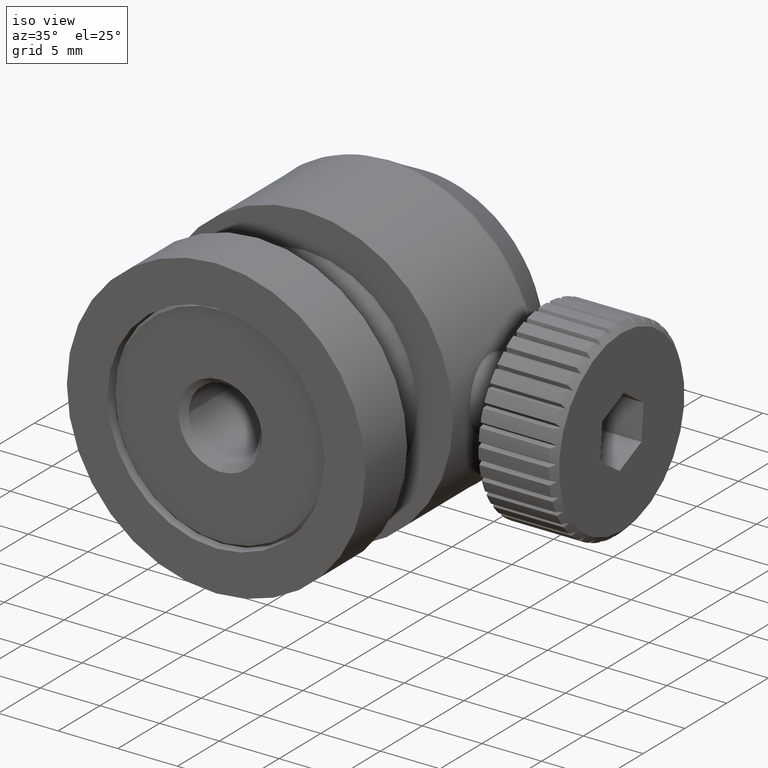
[diagram: clean part render]
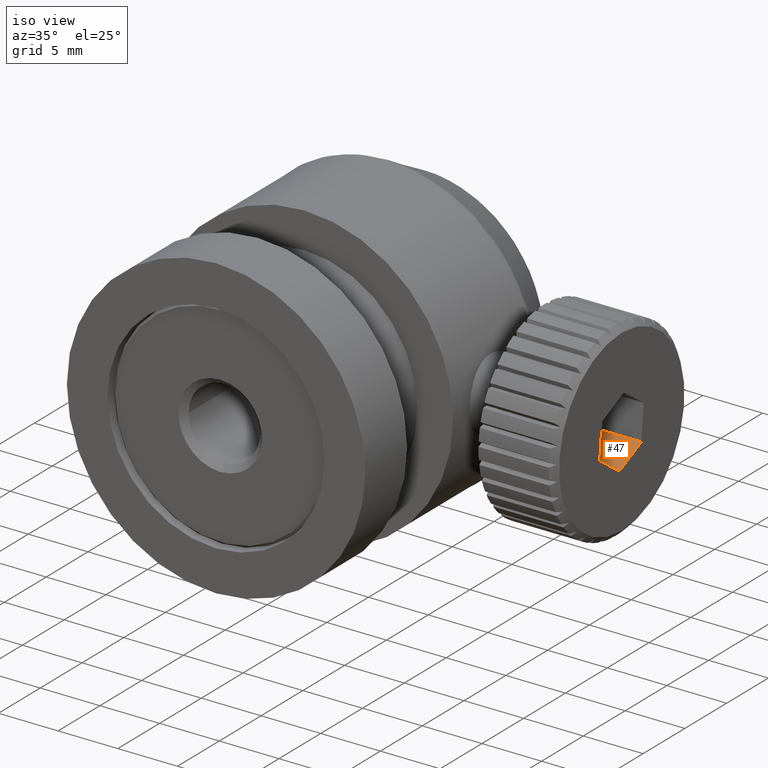
[diagram: same view with one face highlighted and labeled with its STEP entity id]
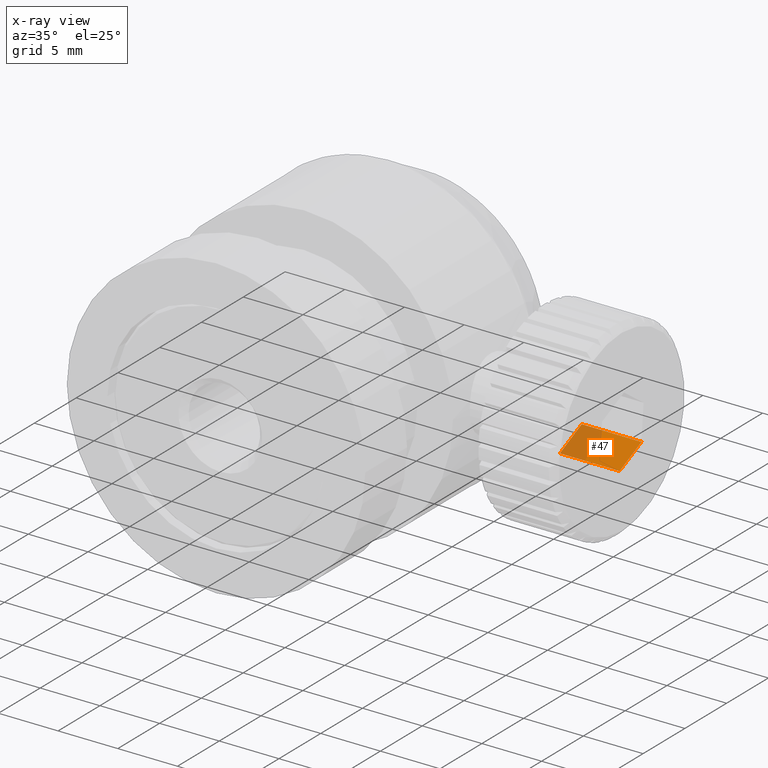
[diagram: x-ray of the same camera — body ghosted, the highlighted face saturated]
A machine part, iso view. The second image highlights one B-rep face of the part: STEP entity #47.
The next image is the same camera in x-ray: the body ghosted, the highlighted face saturated — about 41% of this face is hidden behind the body in this view.
In plain terms, the highlighted planar face has unit normal (-0, 0.4179, -0.9085).
Its self-contained STEP definition (entity closure, byte-faithful):
#47 = ADVANCED_FACE ( 'NONE', ( #1977 ), #3564, .F. ) ;
#395 = CARTESIAN_POINT ( 'NONE',  ( 20.13128916436953020, 3.419890326459812613, -4.006078107295148349 ) ) ;
#592 = DIRECTION ( 'NONE',  ( -1.000000000000000000, -7.015503901450659832E-18, 6.504312379654604108E-19 ) ) ;
#638 = ORIENTED_EDGE ( 'NONE', *, *, #5074, .T. ) ;
#699 = EDGE_LOOP ( 'NONE', ( #1614, #3452, #3606, #638 ) ) ;
#709 = CARTESIAN_POINT ( 'NONE',  ( 15.13128916436952665, 3.419890326459813057, -4.006078107295149238 ) ) ;
#836 = CARTESIAN_POINT ( 'NONE',  ( 15.13128916436952665, 3.419890326459812169, -4.006078107295151014 ) ) ;
#917 = VERTEX_POINT ( 'NONE', #2068 ) ;
#1293 = VECTOR ( 'NONE', #2284, 1000.000000000000000 ) ;
#1299 = LINE ( 'NONE', #2487, #3610 ) ;
#1569 = DIRECTION ( 'NONE',  ( -1.476158666927137447E-16, 0.4179155274445733870, -0.9084858897752480233 ) ) ;
#1612 = LINE ( 'NONE', #395, #2168 ) ;
#1614 = ORIENTED_EDGE ( 'NONE', *, *, #3597, .T. ) ;
#1674 = DIRECTION ( 'NONE',  ( 0.000000000000000000, 0.9084858897752480233, 0.4179155274445733870 ) ) ;
#1977 = FACE_OUTER_BOUND ( 'NONE', #699, .T. ) ;
#2068 = CARTESIAN_POINT ( 'NONE',  ( 15.13128916436952665, 6.042463191543390622, -2.799659895951907007 ) ) ;
#2141 = AXIS2_PLACEMENT_3D ( 'NONE', #2344, #1569, #4820 ) ;
#2168 = VECTOR ( 'NONE', #2389, 1000.000000000000000 ) ;
#2192 = CARTESIAN_POINT ( 'NONE',  ( 15.13128916436952665, 6.042463191543390622, -2.799659895951907451 ) ) ;
#2284 = DIRECTION ( 'NONE',  ( -1.000000000000000000, -6.169096278807330100E-17, 1.341069319972744354E-16 ) ) ;
#2344 = CARTESIAN_POINT ( 'NONE',  ( 15.13128916436952665, 3.419890326459812613, -4.006078107295150126 ) ) ;
#2370 = VECTOR ( 'NONE', #592, 1000.000000000000000 ) ;
#2386 = CARTESIAN_POINT ( 'NONE',  ( 20.13128916436953020, 3.419890326459812613, -4.006078107295151014 ) ) ;
#2389 = DIRECTION ( 'NONE',  ( 0.000000000000000000, 0.9084858897752483564, 0.4179155274445726098 ) ) ;
#2398 = VERTEX_POINT ( 'NONE', #3359 ) ;
#2487 = CARTESIAN_POINT ( 'NONE',  ( 15.13128916436952665, 3.419890326459812613, -4.006078107295150126 ) ) ;
#2705 = LINE ( 'NONE', #709, #1293 ) ;
#2878 = EDGE_CURVE ( 'NONE', #2886, #3050, #2705, .T. ) ;
#2886 = VERTEX_POINT ( 'NONE', #2386 ) ;
#3050 = VERTEX_POINT ( 'NONE', #836 ) ;
#3359 = CARTESIAN_POINT ( 'NONE',  ( 20.13128916436953020, 6.042463191543390622, -2.799659895951907451 ) ) ;
#3452 = ORIENTED_EDGE ( 'NONE', *, *, #3469, .F. ) ;
#3469 = EDGE_CURVE ( 'NONE', #3050, #917, #1299, .T. ) ;
#3564 = PLANE ( 'NONE',  #2141 ) ;
#3597 = EDGE_CURVE ( 'NONE', #2398, #917, #4147, .T. ) ;
#3606 = ORIENTED_EDGE ( 'NONE', *, *, #2878, .F. ) ;
#3610 = VECTOR ( 'NONE', #1674, 1000.000000000000000 ) ;
#4147 = LINE ( 'NONE', #2192, #2370 ) ;
#4820 = DIRECTION ( 'NONE',  ( 0.000000000000000000, 0.9084858897752480233, 0.4179155274445733870 ) ) ;
#5074 = EDGE_CURVE ( 'NONE', #2886, #2398, #1612, .T. ) ;